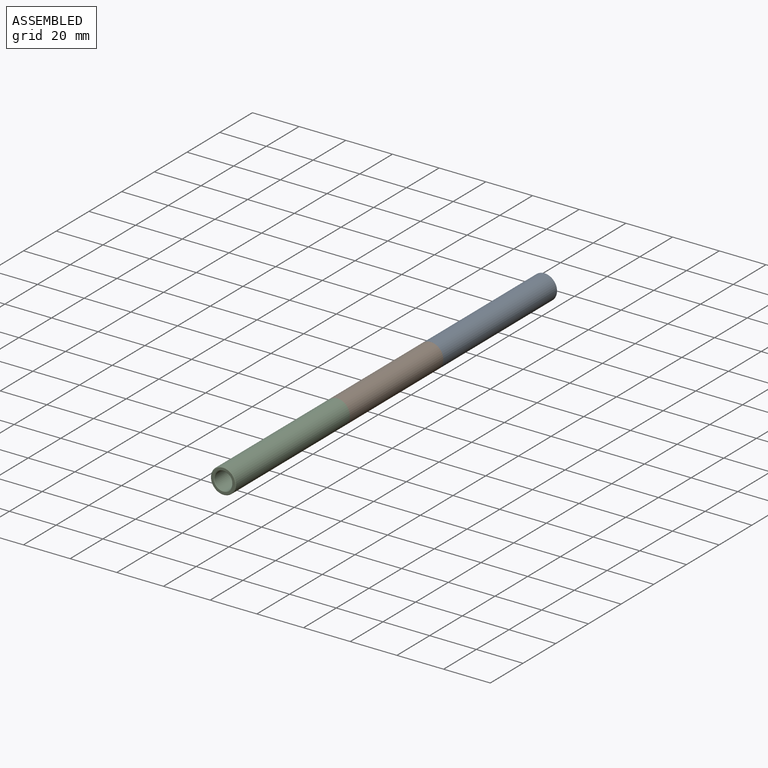
[diagram: assembled view]
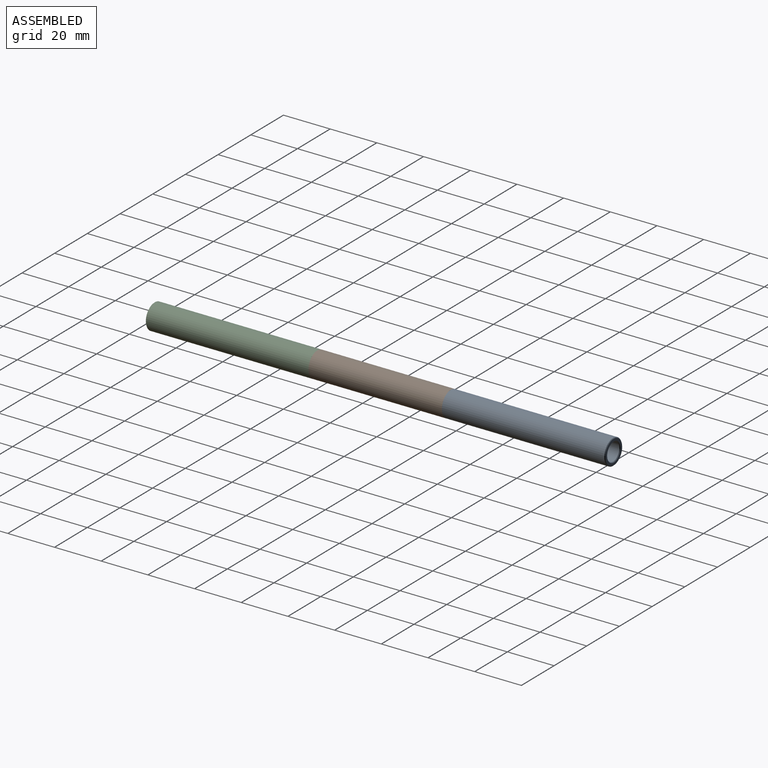
[diagram: assembled view, second angle]
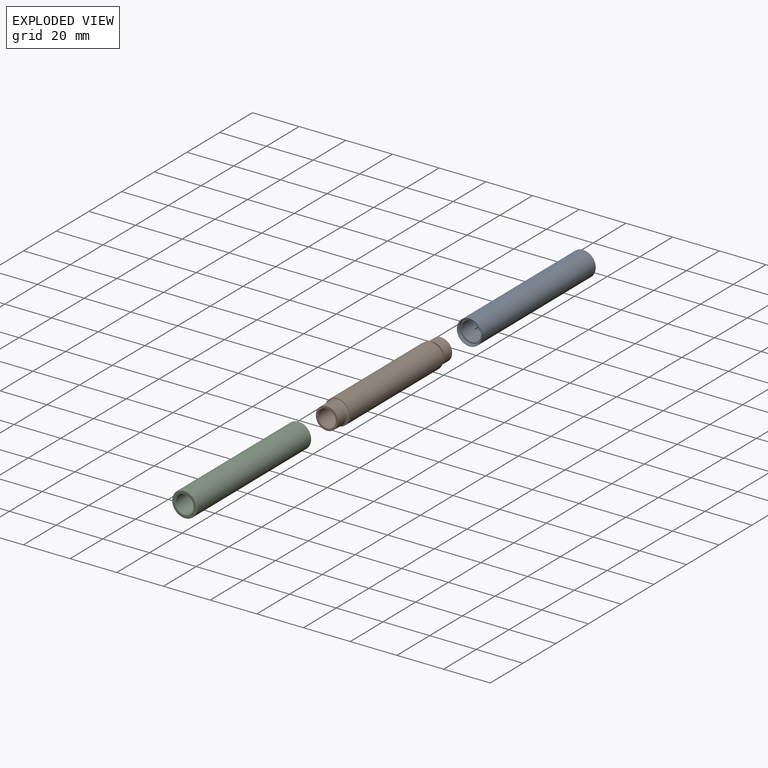
[diagram: exploded view]
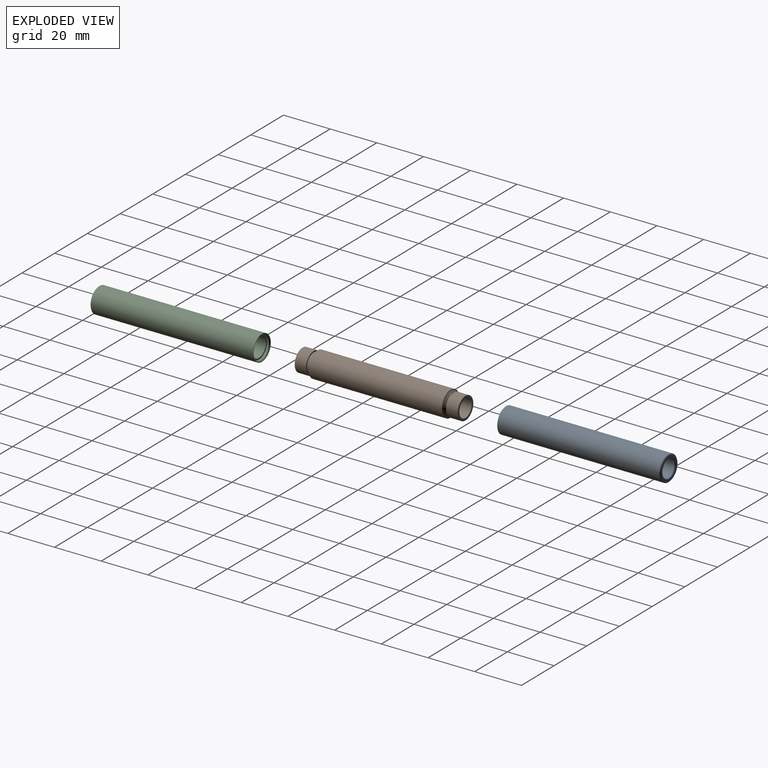
[diagram: exploded view, second angle]
ASSEMBLY  parts=3 mates=4
PART A: 11 faces, bbox 10.8x69.9x10.8 mm
  f0: cylinder r=3.81mm len=60.07mm, axis (0,-1,0), area 1438mm2, adj f1,f9
  f1: plane 8.43x8.43mm, normal (0,1,0), area 10.2mm2, adj f0,f10
  f2: plane 9.65x9.65mm, normal (0,1,0), area 17.3mm2, adj f3,f10
  f3: cylinder r=4.83mm len=9.65mm, axis (0,-1,0), area 27mm2, adj f2,f7
  f4: plane 10.8x10.8mm, normal (0,1,0), area 6.3mm2, adj f5,f7
  f5: cylinder r=5.4mm len=69.6mm, axis (0,-1,0), area 2360.2mm2, adj f4,f8
  f6: plane 10.29x10.29mm, normal (0,-1,0), area 31.2mm2, adj f8,f9
  f7: cone r=5.21mm half-angle=45deg, axis (0,1,0), area 17mm2, adj f3,f4
  f8: cone r=5.14mm half-angle=45deg, axis (0,1,0), area 11.9mm2, adj f5,f6
  f9: cone r=3.81mm half-angle=45deg, axis (0,-1,0), area 8.9mm2, adj f0,f6
  f10: cylinder r=4.22mm len=8.43mm, axis (0,1,0), area 218.7mm2, adj f1,f2
PART B: 14 faces, bbox 10.8x69.9x10.8 mm
  f0: cylinder r=4.19mm len=8.38mm, axis (0,-1,0), area 16.7mm2, adj f8,f10
  f1: cylinder r=4.19mm len=8.38mm, axis (0,-1,0), area 16.7mm2, adj f9,f11
  f2: cylinder r=3.81mm len=69.85mm, axis (0,-1,0), area 1672.1mm2, adj f3,f7
  f3: plane 9.53x9.53mm, normal (0,1,0), area 25.7mm2, adj f2,f12
  f4: plane 10.8x10.8mm, normal (0,1,0), area 10.5mm2, adj f5,f9
  f5: cylinder r=5.4mm len=57.15mm, axis (0,-1,0), area 1938.2mm2, adj f4,f6
  f6: plane 10.8x10.8mm, normal (0,-1,0), area 10.5mm2, adj f5,f8
  f7: plane 9.53x9.53mm, normal (0,-1,0), area 25.7mm2, adj f2,f13
  f8: cone r=4.19mm half-angle=45deg, axis (0,1,0), area 36.6mm2, adj f0,f6
  f9: cone r=5.08mm half-angle=45deg, axis (0,-1,0), area 36.6mm2, adj f1,f4
  f10: plane 9.53x9.53mm, normal (0,1,0), area 16.1mm2, adj f0,f13
  f11: plane 9.53x9.53mm, normal (0,-1,0), area 16.1mm2, adj f1,f12
  f12: cylinder r=4.76mm len=9.53mm, axis (0,-1,0), area 144.4mm2, adj f3,f11
  f13: cylinder r=4.76mm len=9.53mm, axis (0,1,0), area 144.4mm2, adj f7,f10
PART C: same geometry as A
PLACE A rot(axis=(0.78,0,0.63),180deg) t=(-2.65,125.69,-1.54)mm
PLACE B rot(axis=(0,1,0),70.3deg) t=(-2.65,-7.66,-1.54)mm
PLACE C rot(axis=(0,1,0),10.7deg) t=(-2.65,-71.16,-1.54)mm fixed
MATE cylindrical B.f0 <-> A.f0  axis (0,-1,0) through (-2.65,27.27,-1.54)mm
MATE cylindrical B.f0 <-> C.f0  axis (0,-1,0) through (-2.65,27.27,-1.54)mm
MATE planar A.f0 <-> B.f12  axis (0,-1,0) through (-2.65,55.84,-1.54)mm
MATE planar B.f12 <-> C.f0  axis (0,-1,0) through (-2.65,-1.31,-1.54)mm
